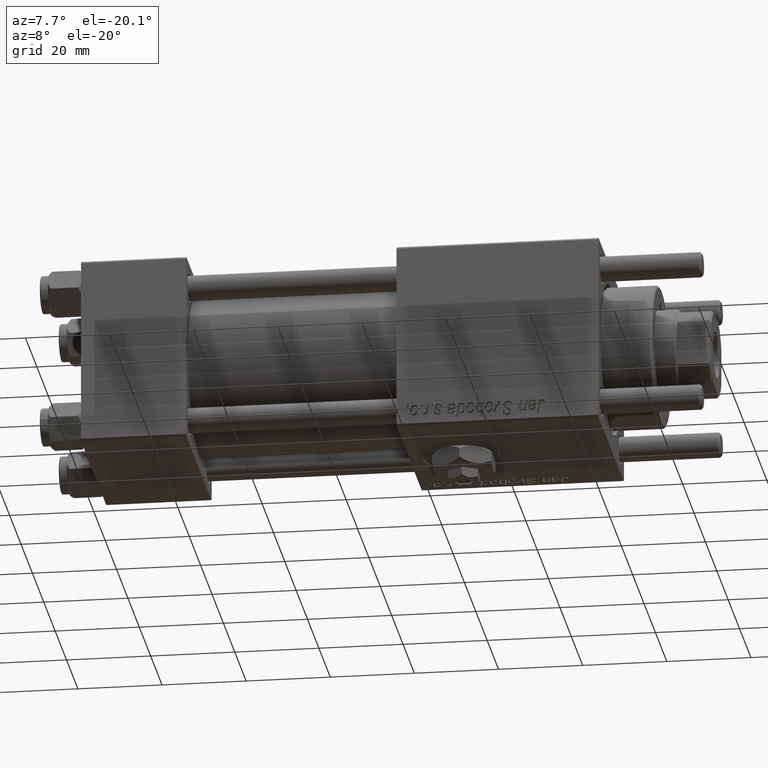
[diagram: clean part render]
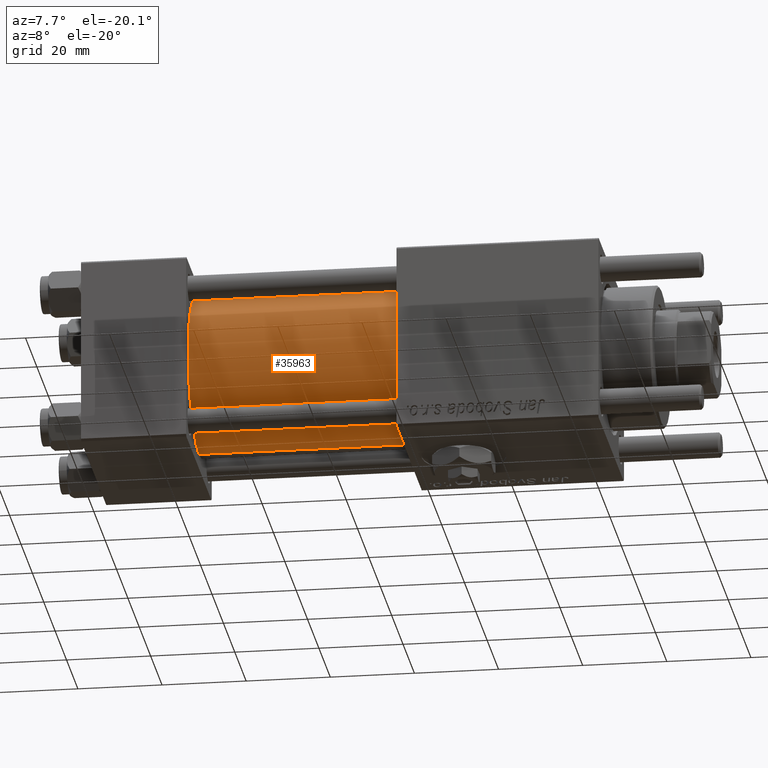
[diagram: same view with one face highlighted and labeled with its STEP entity id]
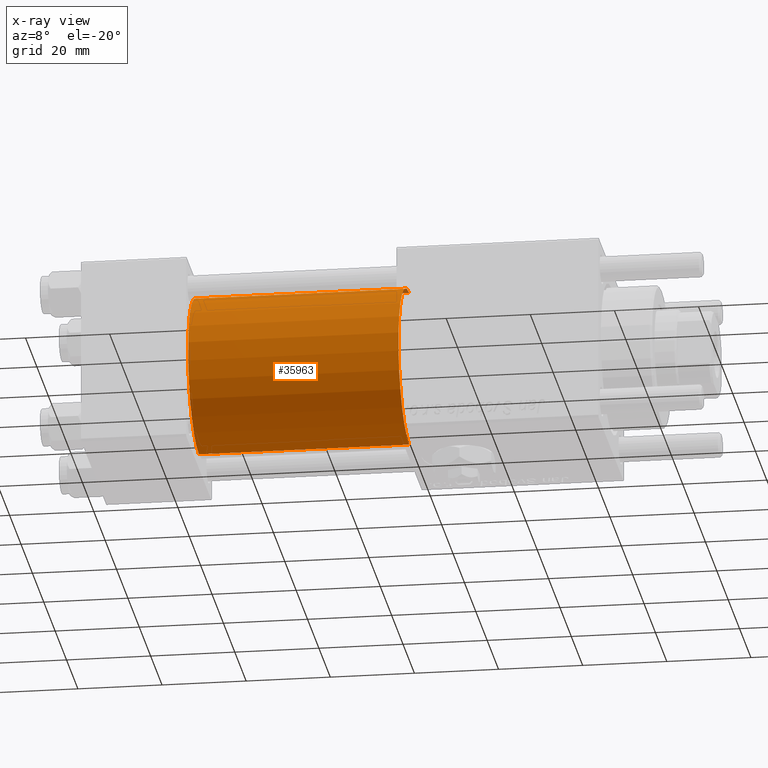
[diagram: x-ray of the same camera — body ghosted, the highlighted face saturated]
A machine part, auxiliary view. The second image highlights one B-rep face of the part: STEP entity #35963.
The next image is the same camera in x-ray: the body ghosted, the highlighted face saturated — about 0% of this face is hidden behind the body in this view.
In plain terms, the highlighted cylindrical surface (partial cylindrical patch) has radius 19 mm, axis along (-1, -0, -0).
Its self-contained STEP definition (entity closure, byte-faithful):
#101 = VERTEX_POINT ( 'NONE', #26431 ) ;
#1860 = CARTESIAN_POINT ( 'NONE',  ( 25.00000000000000000, -2.602085213965210642E-15, 0.000000000000000000 ) ) ;
#2454 = DIRECTION ( 'NONE',  ( 0.000000000000000000, 0.000000000000000000, 1.000000000000000000 ) ) ;
#2841 = DIRECTION ( 'NONE',  ( 1.000000000000000000, 0.000000000000000000, 0.000000000000000000 ) ) ;
#3364 = EDGE_CURVE ( 'NONE', #101, #42760, #32294, .T. ) ;
#3865 = FACE_OUTER_BOUND ( 'NONE', #12837, .T. ) ;
#5102 = DIRECTION ( 'NONE',  ( -1.000000000000000000, -0.000000000000000000, -0.000000000000000000 ) ) ;
#6878 = DIRECTION ( 'NONE',  ( 1.000000000000000000, -0.000000000000000000, 0.000000000000000000 ) ) ;
#10132 = AXIS2_PLACEMENT_3D ( 'NONE', #1860, #6878, #2454 ) ;
#10872 = CARTESIAN_POINT ( 'NONE',  ( 25.00000000000000000, -2.602085213965210642E-15, 19.00000000000000000 ) ) ;
#11435 = VERTEX_POINT ( 'NONE', #26628 ) ;
#12837 = EDGE_LOOP ( 'NONE', ( #31024, #43285, #16398, #36146 ) ) ;
#16398 = ORIENTED_EDGE ( 'NONE', *, *, #3364, .T. ) ;
#16869 = DIRECTION ( 'NONE',  ( 0.000000000000000000, 0.000000000000000000, 1.000000000000000000 ) ) ;
#17879 = CARTESIAN_POINT ( 'NONE',  ( 75.00000000000001421, -2.752562955852396712E-16, -19.00000000000000000 ) ) ;
#22253 = VECTOR ( 'NONE', #34565, 1000.000000000000000 ) ;
#25465 = CARTESIAN_POINT ( 'NONE',  ( 75.00000000000001421, -2.602085213965210642E-15, 0.000000000000000000 ) ) ;
#26161 = CIRCLE ( 'NONE', #10132, 19.00000000000000000 ) ;
#26431 = CARTESIAN_POINT ( 'NONE',  ( 75.00000000000001421, -2.602085213965210642E-15, 19.00000000000000000 ) ) ;
#26628 = CARTESIAN_POINT ( 'NONE',  ( 25.00000000000000000, -2.752562955852396712E-16, -19.00000000000000000 ) ) ;
#30189 = CYLINDRICAL_SURFACE ( 'NONE', #31645, 19.00000000000000000 ) ;
#31024 = ORIENTED_EDGE ( 'NONE', *, *, #38241, .F. ) ;
#31645 = AXIS2_PLACEMENT_3D ( 'NONE', #25465, #39101, #16869 ) ;
#32294 = LINE ( 'NONE', #49504, #34129 ) ;
#34129 = VECTOR ( 'NONE', #5102, 1000.000000000000000 ) ;
#34187 = CARTESIAN_POINT ( 'NONE',  ( 75.00000000000001421, -2.602085213965210642E-15, 0.000000000000000000 ) ) ;
#34265 = AXIS2_PLACEMENT_3D ( 'NONE', #34187, #2841, #34489 ) ;
#34489 = DIRECTION ( 'NONE',  ( 0.000000000000000000, 0.000000000000000000, -1.000000000000000000 ) ) ;
#34565 = DIRECTION ( 'NONE',  ( -1.000000000000000000, -0.000000000000000000, -0.000000000000000000 ) ) ;
#35963 = ADVANCED_FACE ( 'NONE', ( #3865 ), #30189, .T. ) ;
#36146 = ORIENTED_EDGE ( 'NONE', *, *, #42527, .T. ) ;
#38241 = EDGE_CURVE ( 'NONE', #53334, #11435, #56494, .T. ) ;
#39101 = DIRECTION ( 'NONE',  ( -1.000000000000000000, -0.000000000000000000, -0.000000000000000000 ) ) ;
#42527 = EDGE_CURVE ( 'NONE', #42760, #11435, #26161, .T. ) ;
#42760 = VERTEX_POINT ( 'NONE', #10872 ) ;
#42870 = CARTESIAN_POINT ( 'NONE',  ( 75.00000000000001421, -2.752562955852396712E-16, -19.00000000000000000 ) ) ;
#43285 = ORIENTED_EDGE ( 'NONE', *, *, #55922, .F. ) ;
#44657 = CIRCLE ( 'NONE', #34265, 19.00000000000000000 ) ;
#49504 = CARTESIAN_POINT ( 'NONE',  ( 75.00000000000001421, -2.602085213965210642E-15, 19.00000000000000000 ) ) ;
#53334 = VERTEX_POINT ( 'NONE', #17879 ) ;
#55922 = EDGE_CURVE ( 'NONE', #101, #53334, #44657, .T. ) ;
#56494 = LINE ( 'NONE', #42870, #22253 ) ;